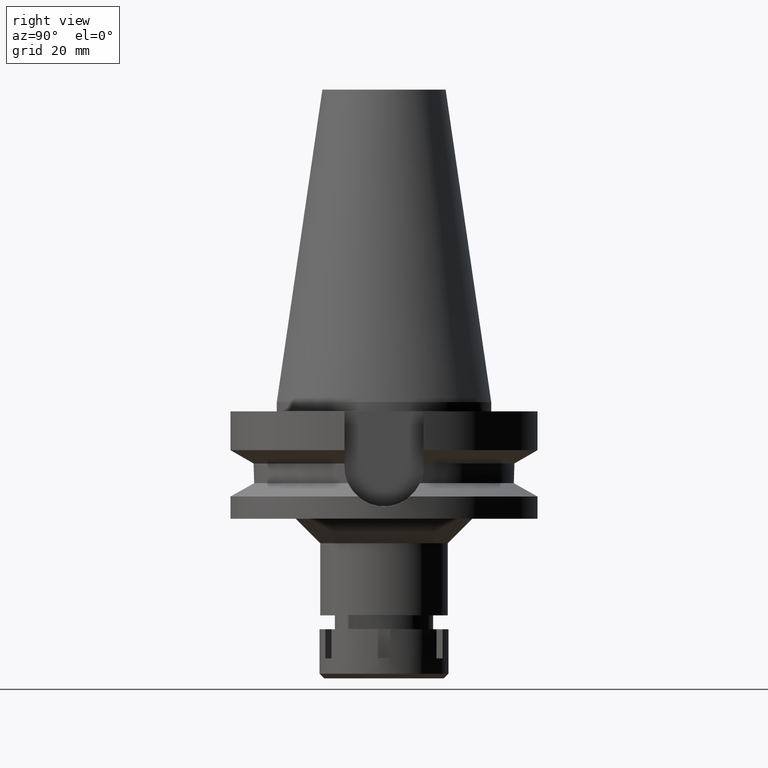
[diagram: clean part render]
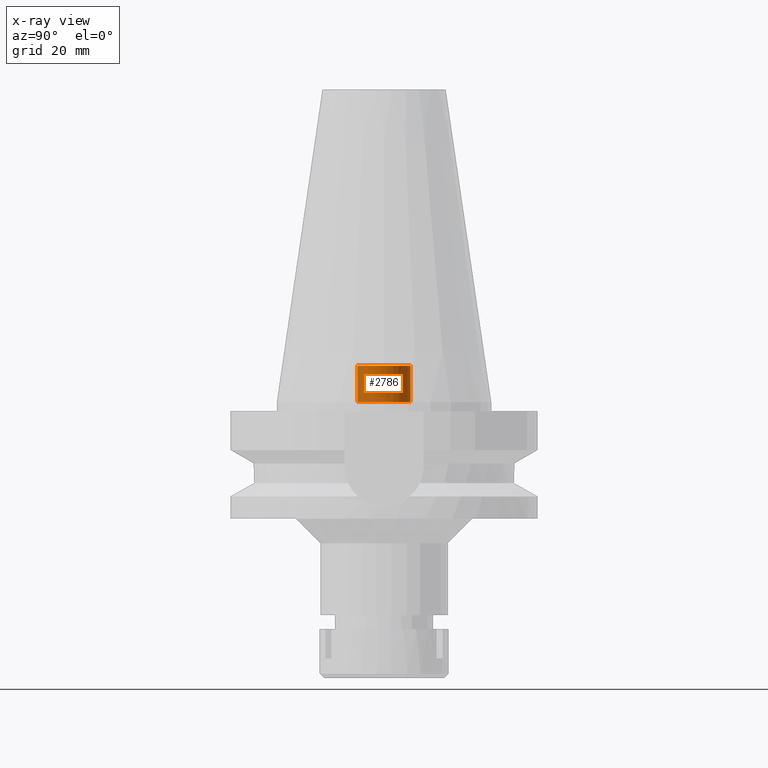
[diagram: x-ray — body ghosted, one internal face saturated and labeled with its STEP entity id]
A machine part, right view, then the same camera in x-ray: the body is ghosted and one INTERNAL B-rep face — a face not visible from any outside direction — is saturated and labeled: STEP entity #2786.
In plain terms, the highlighted cylindrical surface (edge-blend (fillet) strip) has radius 8.65 mm, axis along (0, 0, -1).
Its self-contained STEP definition (entity closure, byte-faithful):
#10 = DIRECTION ( 'NONE',  ( 0.0000000000000000000, 0.0000000000000000000, 1.000000000000000000 ) ) ;
#61 = EDGE_CURVE ( 'NONE', #3051, #392, #833, .T. ) ;
#70 = DIRECTION ( 'NONE',  ( 0.0000000000000000000, -1.000000000000000000, 0.0000000000000000000 ) ) ;
#286 = CARTESIAN_POINT ( 'NONE',  ( 0.0000000000000000000, -8.650000000000000355, 11.79999999999999893 ) ) ;
#296 = CARTESIAN_POINT ( 'NONE',  ( 0.0000000000000000000, 8.650000000000000355, 11.79999999999999893 ) ) ;
#392 = VERTEX_POINT ( 'NONE', #3593 ) ;
#424 = EDGE_CURVE ( 'NONE', #392, #3499, #812, .T. ) ;
#553 = ORIENTED_EDGE ( 'NONE', *, *, #2579, .T. ) ;
#791 = LINE ( 'NONE', #1896, #3228 ) ;
#808 = CIRCLE ( 'NONE', #2720, 8.650000000000000355 ) ;
#812 = LINE ( 'NONE', #2525, #2521 ) ;
#833 = CIRCLE ( 'NONE', #1709, 8.650000000000000355 ) ;
#916 = CARTESIAN_POINT ( 'NONE',  ( 0.0000000000000000000, 2.583882281520999630E-14, 11.79999999999999893 ) ) ;
#979 = ORIENTED_EDGE ( 'NONE', *, *, #1002, .T. ) ;
#1002 = EDGE_CURVE ( 'NONE', #3051, #2802, #791, .T. ) ;
#1243 = CARTESIAN_POINT ( 'NONE',  ( 0.0000000000000000000, 2.583882281520999630E-14, 1.989519660127999812E-13 ) ) ;
#1284 = ORIENTED_EDGE ( 'NONE', *, *, #61, .F. ) ;
#1342 = ORIENTED_EDGE ( 'NONE', *, *, #424, .F. ) ;
#1372 = EDGE_LOOP ( 'NONE', ( #1284, #979, #553, #1342 ) ) ;
#1709 = AXIS2_PLACEMENT_3D ( 'NONE', #1243, #2600, #70 ) ;
#1801 = DIRECTION ( 'NONE',  ( 0.0000000000000000000, 0.0000000000000000000, -1.000000000000000000 ) ) ;
#1896 = CARTESIAN_POINT ( 'NONE',  ( 0.0000000000000000000, -8.650000000000000355, 1.989519660127999812E-13 ) ) ;
#2006 = CARTESIAN_POINT ( 'NONE',  ( 0.0000000000000000000, -8.650000000000000355, 1.989519660127999812E-13 ) ) ;
#2077 = FACE_OUTER_BOUND ( 'NONE', #1372, .T. ) ;
#2299 = DIRECTION ( 'NONE',  ( 0.0000000000000000000, -1.000000000000000000, 0.0000000000000000000 ) ) ;
#2521 = VECTOR ( 'NONE', #10, 1000.000000000000000 ) ;
#2525 = CARTESIAN_POINT ( 'NONE',  ( 0.0000000000000000000, 8.650000000000000355, 1.989519660127999812E-13 ) ) ;
#2579 = EDGE_CURVE ( 'NONE', #2802, #3499, #808, .T. ) ;
#2600 = DIRECTION ( 'NONE',  ( 0.0000000000000000000, 0.0000000000000000000, 1.000000000000000000 ) ) ;
#2618 = CYLINDRICAL_SURFACE ( 'NONE', #3212, 8.650000000000000355 ) ;
#2720 = AXIS2_PLACEMENT_3D ( 'NONE', #916, #2845, #2299 ) ;
#2786 = ADVANCED_FACE ( 'NONE', ( #2077 ), #2618, .F. ) ;
#2802 = VERTEX_POINT ( 'NONE', #286 ) ;
#2845 = DIRECTION ( 'NONE',  ( 0.0000000000000000000, 0.0000000000000000000, 1.000000000000000000 ) ) ;
#2920 = DIRECTION ( 'NONE',  ( 0.0000000000000000000, -1.000000000000000000, 0.0000000000000000000 ) ) ;
#3015 = DIRECTION ( 'NONE',  ( 0.0000000000000000000, 0.0000000000000000000, 1.000000000000000000 ) ) ;
#3051 = VERTEX_POINT ( 'NONE', #2006 ) ;
#3200 = CARTESIAN_POINT ( 'NONE',  ( 0.0000000000000000000, 2.583882281520999630E-14, 110.9900000000000091 ) ) ;
#3212 = AXIS2_PLACEMENT_3D ( 'NONE', #3200, #1801, #2920 ) ;
#3228 = VECTOR ( 'NONE', #3015, 1000.000000000000000 ) ;
#3499 = VERTEX_POINT ( 'NONE', #296 ) ;
#3593 = CARTESIAN_POINT ( 'NONE',  ( 0.0000000000000000000, 8.650000000000000355, 1.989519660127999812E-13 ) ) ;